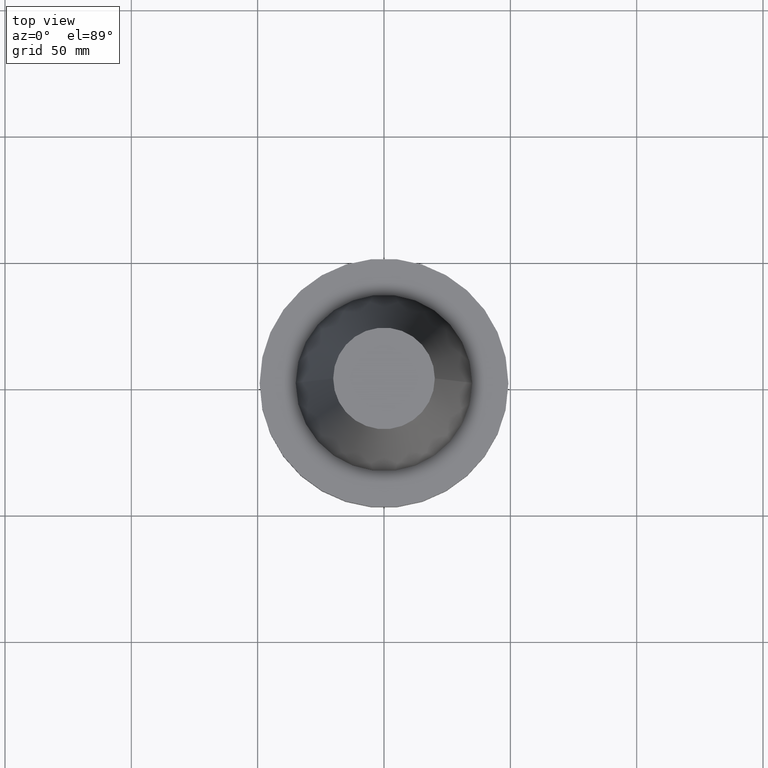
[diagram: clean part render]
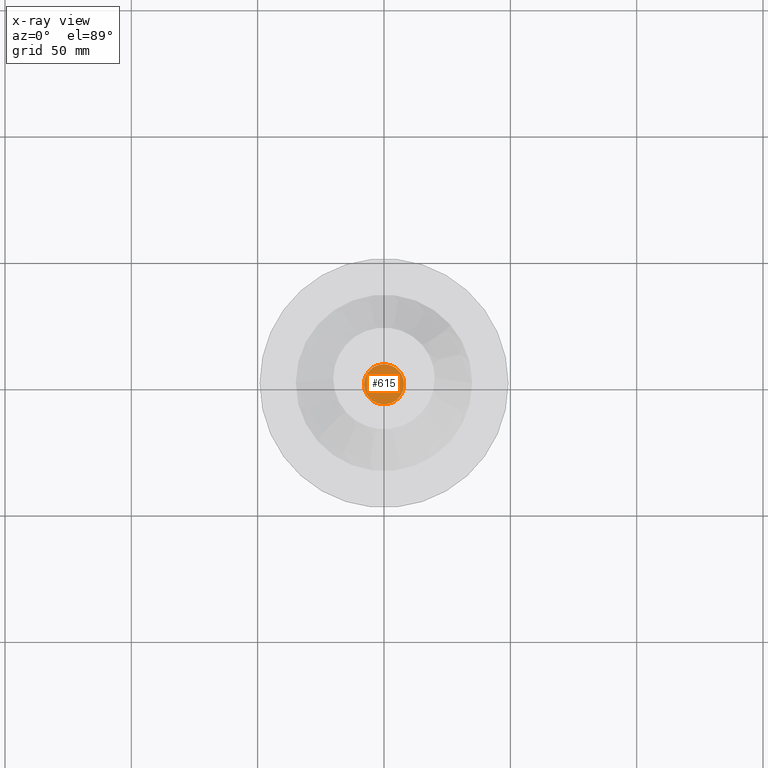
[diagram: x-ray — body ghosted, one internal face saturated and labeled with its STEP entity id]
A machine part, top view, then the same camera in x-ray: the body is ghosted and one INTERNAL B-rep face — a face not visible from any outside direction — is saturated and labeled: STEP entity #615.
In plain terms, the highlighted planar face has unit normal (0, -0, 1).
Its self-contained STEP definition (entity closure, byte-faithful):
#30 = VERTEX_POINT ( 'NONE', #849 ) ;
#133 = PLANE ( 'NONE',  #709 ) ;
#170 = ORIENTED_EDGE ( 'NONE', *, *, #447, .F. ) ;
#256 = DIRECTION ( 'NONE',  ( 1.000000000000000000, 0.000000000000000000, 0.000000000000000000 ) ) ;
#264 = AXIS2_PLACEMENT_3D ( 'NONE', #352, #654, #722 ) ;
#280 = CARTESIAN_POINT ( 'NONE',  ( 0.000000000000000000, 34.92499999999999716, -35.04999999999999716 ) ) ;
#301 = CIRCLE ( 'NONE', #264, 7.939999999999997726 ) ;
#352 = CARTESIAN_POINT ( 'NONE',  ( 0.000000000000000000, 0.000000000000000000, -35.04999999999999716 ) ) ;
#447 = EDGE_CURVE ( 'NONE', #30, #490, #596, .T. ) ;
#452 = CARTESIAN_POINT ( 'NONE',  ( 0.000000000000000000, 0.000000000000000000, -35.04999999999999716 ) ) ;
#490 = VERTEX_POINT ( 'NONE', #514 ) ;
#514 = CARTESIAN_POINT ( 'NONE',  ( -7.939999999999997726, 9.723695585229981176E-16, -35.04999999999999716 ) ) ;
#535 = DIRECTION ( 'NONE',  ( 0.000000000000000000, -0.000000000000000000, 1.000000000000000000 ) ) ;
#551 = AXIS2_PLACEMENT_3D ( 'NONE', #452, #641, #256 ) ;
#596 = CIRCLE ( 'NONE', #551, 7.939999999999997726 ) ;
#610 = DIRECTION ( 'NONE',  ( 1.000000000000000000, 0.000000000000000000, 0.000000000000000000 ) ) ;
#611 = EDGE_CURVE ( 'NONE', #490, #30, #301, .T. ) ;
#615 = ADVANCED_FACE ( 'NONE', ( #658 ), #133, .F. ) ;
#634 = ORIENTED_EDGE ( 'NONE', *, *, #611, .F. ) ;
#641 = DIRECTION ( 'NONE',  ( -0.000000000000000000, -0.000000000000000000, 1.000000000000000000 ) ) ;
#654 = DIRECTION ( 'NONE',  ( -0.000000000000000000, -0.000000000000000000, 1.000000000000000000 ) ) ;
#658 = FACE_OUTER_BOUND ( 'NONE', #723, .T. ) ;
#709 = AXIS2_PLACEMENT_3D ( 'NONE', #280, #535, #610 ) ;
#722 = DIRECTION ( 'NONE',  ( 1.000000000000000000, 0.000000000000000000, 0.000000000000000000 ) ) ;
#723 = EDGE_LOOP ( 'NONE', ( #170, #634 ) ) ;
#849 = CARTESIAN_POINT ( 'NONE',  ( 7.939999999999997726, 0.000000000000000000, -35.04999999999999716 ) ) ;